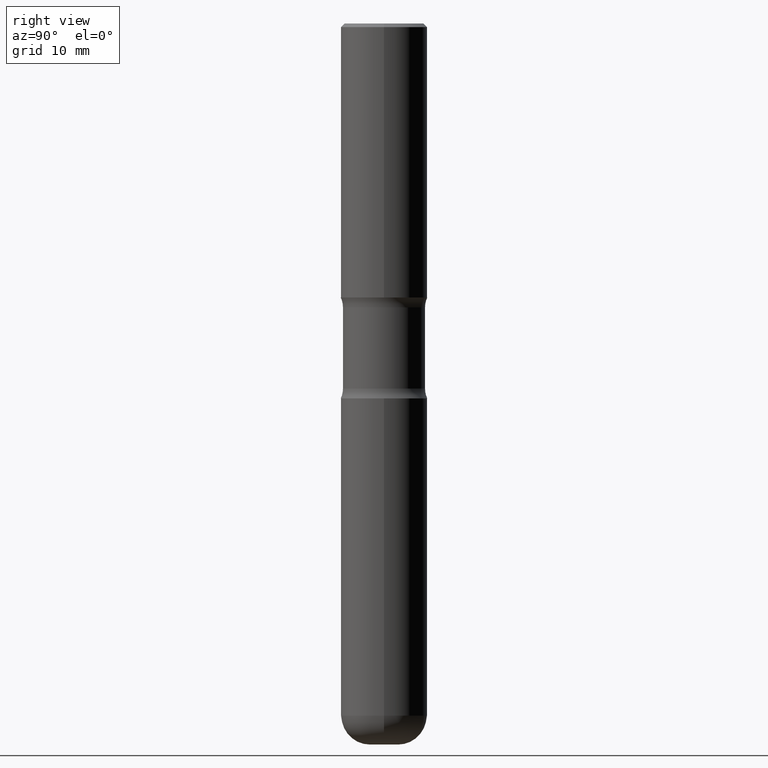
[diagram: clean part render]
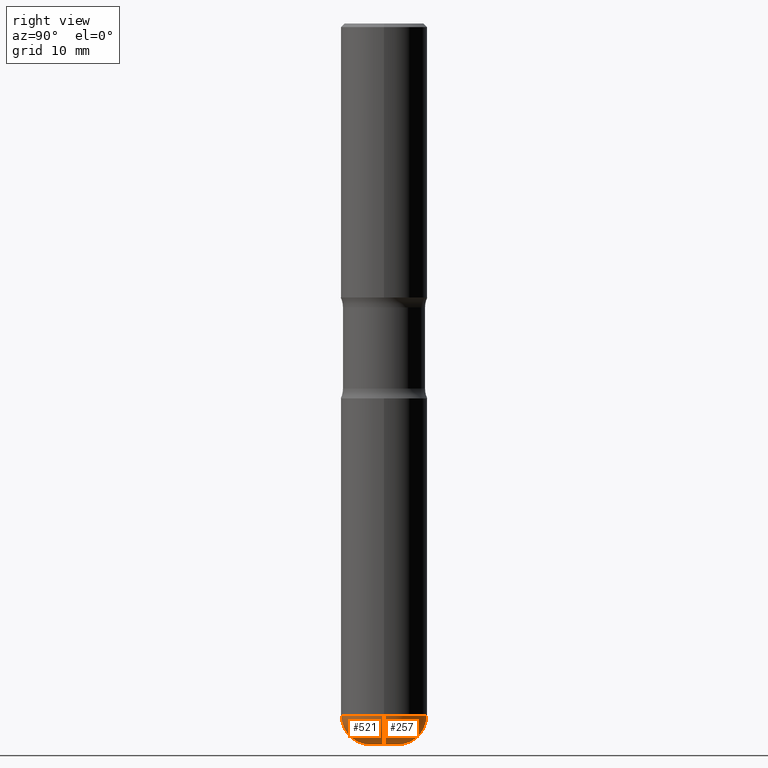
[diagram: same view with one multi-face feature highlighted, each face labeled with its STEP entity id]
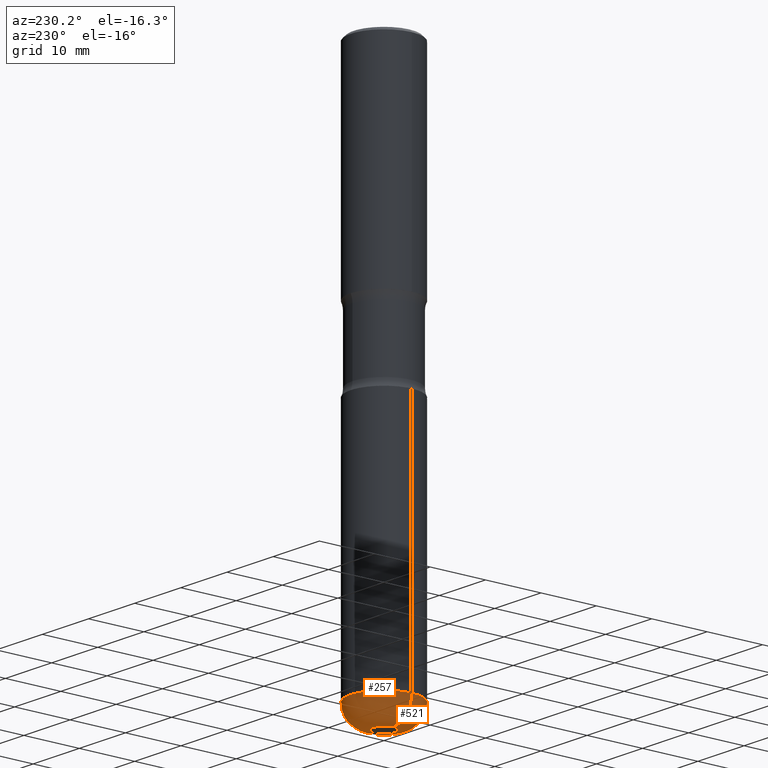
[diagram: same view with one multi-face feature highlighted, each face labeled with its STEP entity id]
A machine part, right view. The highlighted faces form ONE feature: a constant-radius fillet chain: 2 tangent blend faces with common blend radius 4.0132 mm. The faces share edges in the B-rep.
A second angle (auxiliary view) of the same feature is appended — it is thin or edge-on in the first view.
Their STEP definitions:
[1] entity #521 (Torus):
#36 = CARTESIAN_POINT ( 'NONE',  ( 9.627810689950883669E-29, -1.374596203102546341E-14, -3.937000000000000277 ) ) ;
#45 = AXIS2_PLACEMENT_3D ( 'NONE', #161, #383, #119 ) ;
#54 = CARTESIAN_POINT ( 'NONE',  ( -0.07820000000000038032, -1.263866356012384910E-14, -3.779000000000000359 ) ) ;
#65 = ORIENTED_EDGE ( 'NONE', *, *, #524, .T. ) ;
#69 = DIRECTION ( 'NONE',  ( -2.445468806185136597E-29, 3.491481338843145583E-15, 1.000000000000000000 ) ) ;
#78 = EDGE_CURVE ( 'NONE', #406, #420, #81, .T. ) ;
#81 = CIRCLE ( 'NONE', #251, 0.1579999999999998628 ) ;
#117 = CIRCLE ( 'NONE', #178, 0.07820000000000038032 ) ;
#119 = DIRECTION ( 'NONE',  ( 1.000000000000000000, -6.982962677686265922E-15, 4.883557194083112901E-29 ) ) ;
#131 = TOROIDAL_SURFACE ( 'NONE', #45, 0.07820000000000038032, 0.1579999999999998628 ) ;
#139 = DIRECTION ( 'NONE',  ( 7.105427357601001859E-15, 1.000000000000000000, -3.491481338843145583E-15 ) ) ;
#155 = EDGE_LOOP ( 'NONE', ( #219, #65, #189, #387 ) ) ;
#157 = DIRECTION ( 'NONE',  ( -6.982962677686266711E-15, -1.000000000000000000, 3.491481338843145583E-15 ) ) ;
#159 = CARTESIAN_POINT ( 'NONE',  ( 0.07820000000000038032, -1.374037566088331776E-14, -3.779000000000000359 ) ) ;
#161 = CARTESIAN_POINT ( 'NONE',  ( 9.241426618573632392E-29, -1.319430797948824935E-14, -3.779000000000000359 ) ) ;
#178 = AXIS2_PLACEMENT_3D ( 'NONE', #36, #241, #429 ) ;
#186 = AXIS2_PLACEMENT_3D ( 'NONE', #455, #69, #321 ) ;
#189 = ORIENTED_EDGE ( 'NONE', *, *, #466, .T. ) ;
#219 = ORIENTED_EDGE ( 'NONE', *, *, #78, .F. ) ;
#241 = DIRECTION ( 'NONE',  ( -2.445468806185136597E-29, 3.491481338843145583E-15, 1.000000000000000000 ) ) ;
#251 = AXIS2_PLACEMENT_3D ( 'NONE', #54, #139, #353 ) ;
#290 = FACE_OUTER_BOUND ( 'NONE', #155, .T. ) ;
#292 = AXIS2_PLACEMENT_3D ( 'NONE', #159, #157, #559 ) ;
#321 = DIRECTION ( 'NONE',  ( 1.000000000000000000, -6.982962677686263555E-15, 0.000000000000000000 ) ) ;
#340 = CARTESIAN_POINT ( 'NONE',  ( 0.2362000000000002709, -1.484368376395774588E-14, -3.779000000000000359 ) ) ;
#345 = CIRCLE ( 'NONE', #292, 0.1579999999999998628 ) ;
#353 = DIRECTION ( 'NONE',  ( -1.000000000000000000, 7.105427357600997914E-15, 0.000000000000000000 ) ) ;
#383 = DIRECTION ( 'NONE',  ( -2.445468806185136597E-29, 3.491481338843145583E-15, 1.000000000000000000 ) ) ;
#387 = ORIENTED_EDGE ( 'NONE', *, *, #393, .F. ) ;
#393 = EDGE_CURVE ( 'NONE', #420, #508, #476, .T. ) ;
#406 = VERTEX_POINT ( 'NONE', #556 ) ;
#420 = VERTEX_POINT ( 'NONE', #427 ) ;
#427 = CARTESIAN_POINT ( 'NONE',  ( -0.2362000000000002709, -1.151600603762289138E-14, -3.779000000000000359 ) ) ;
#429 = DIRECTION ( 'NONE',  ( 1.000000000000000000, -6.982962677686266711E-15, 0.000000000000000000 ) ) ;
#455 = CARTESIAN_POINT ( 'NONE',  ( 9.241426618573632392E-29, -1.319430797948824935E-14, -3.779000000000000359 ) ) ;
#466 = EDGE_CURVE ( 'NONE', #554, #508, #345, .T. ) ;
#476 = CIRCLE ( 'NONE', #186, 0.2362000000000003264 ) ;
#508 = VERTEX_POINT ( 'NONE', #340 ) ;
#521 = ADVANCED_FACE ( 'NONE', ( #290 ), #131, .T. ) ;
#522 = CARTESIAN_POINT ( 'NONE',  ( 0.07820000000000038032, -1.429202971242053182E-14, -3.937000000000000277 ) ) ;
#524 = EDGE_CURVE ( 'NONE', #406, #554, #117, .T. ) ;
#554 = VERTEX_POINT ( 'NONE', #522 ) ;
#556 = CARTESIAN_POINT ( 'NONE',  ( -0.07820000000000038032, -1.235316182464197885E-14, -3.937000000000000277 ) ) ;
#559 = DIRECTION ( 'NONE',  ( 1.000000000000000000, -6.982962677686265133E-15, 0.000000000000000000 ) ) ;
[2] entity #257 (Torus):
#54 = CARTESIAN_POINT ( 'NONE',  ( -0.07820000000000038032, -1.263866356012384910E-14, -3.779000000000000359 ) ) ;
#78 = EDGE_CURVE ( 'NONE', #406, #420, #81, .T. ) ;
#81 = CIRCLE ( 'NONE', #251, 0.1579999999999998628 ) ;
#88 = EDGE_CURVE ( 'NONE', #508, #420, #220, .T. ) ;
#112 = FACE_OUTER_BOUND ( 'NONE', #545, .T. ) ;
#118 = AXIS2_PLACEMENT_3D ( 'NONE', #252, #400, #207 ) ;
#124 = AXIS2_PLACEMENT_3D ( 'NONE', #224, #221, #216 ) ;
#139 = DIRECTION ( 'NONE',  ( 7.105427357601001859E-15, 1.000000000000000000, -3.491481338843145583E-15 ) ) ;
#145 = DIRECTION ( 'NONE',  ( 1.000000000000000000, -6.982962677686265922E-15, 4.883557194083112901E-29 ) ) ;
#157 = DIRECTION ( 'NONE',  ( -6.982962677686266711E-15, -1.000000000000000000, 3.491481338843145583E-15 ) ) ;
#159 = CARTESIAN_POINT ( 'NONE',  ( 0.07820000000000038032, -1.374037566088331776E-14, -3.779000000000000359 ) ) ;
#207 = DIRECTION ( 'NONE',  ( 1.000000000000000000, -6.982962677686263555E-15, 0.000000000000000000 ) ) ;
#216 = DIRECTION ( 'NONE',  ( 1.000000000000000000, -6.982962677686266711E-15, 0.000000000000000000 ) ) ;
#218 = ORIENTED_EDGE ( 'NONE', *, *, #78, .T. ) ;
#220 = CIRCLE ( 'NONE', #118, 0.2362000000000003264 ) ;
#221 = DIRECTION ( 'NONE',  ( -2.445468806185136597E-29, 3.491481338843145583E-15, 1.000000000000000000 ) ) ;
#224 = CARTESIAN_POINT ( 'NONE',  ( 9.627810689950883669E-29, -1.374596203102546341E-14, -3.937000000000000277 ) ) ;
#226 = CARTESIAN_POINT ( 'NONE',  ( 9.241426618573632392E-29, -1.319430797948824935E-14, -3.779000000000000359 ) ) ;
#251 = AXIS2_PLACEMENT_3D ( 'NONE', #54, #139, #353 ) ;
#252 = CARTESIAN_POINT ( 'NONE',  ( 9.241426618573632392E-29, -1.319430797948824935E-14, -3.779000000000000359 ) ) ;
#257 = ADVANCED_FACE ( 'NONE', ( #112 ), #335, .T. ) ;
#274 = ORIENTED_EDGE ( 'NONE', *, *, #298, .T. ) ;
#292 = AXIS2_PLACEMENT_3D ( 'NONE', #159, #157, #559 ) ;
#298 = EDGE_CURVE ( 'NONE', #554, #406, #365, .T. ) ;
#317 = DIRECTION ( 'NONE',  ( -2.445468806185136597E-29, 3.491481338843145583E-15, 1.000000000000000000 ) ) ;
#335 = TOROIDAL_SURFACE ( 'NONE', #486, 0.07820000000000038032, 0.1579999999999998628 ) ;
#340 = CARTESIAN_POINT ( 'NONE',  ( 0.2362000000000002709, -1.484368376395774588E-14, -3.779000000000000359 ) ) ;
#345 = CIRCLE ( 'NONE', #292, 0.1579999999999998628 ) ;
#353 = DIRECTION ( 'NONE',  ( -1.000000000000000000, 7.105427357600997914E-15, 0.000000000000000000 ) ) ;
#365 = CIRCLE ( 'NONE', #124, 0.07820000000000038032 ) ;
#400 = DIRECTION ( 'NONE',  ( -2.445468806185136597E-29, 3.491481338843145583E-15, 1.000000000000000000 ) ) ;
#406 = VERTEX_POINT ( 'NONE', #556 ) ;
#420 = VERTEX_POINT ( 'NONE', #427 ) ;
#427 = CARTESIAN_POINT ( 'NONE',  ( -0.2362000000000002709, -1.151600603762289138E-14, -3.779000000000000359 ) ) ;
#452 = ORIENTED_EDGE ( 'NONE', *, *, #88, .F. ) ;
#466 = EDGE_CURVE ( 'NONE', #554, #508, #345, .T. ) ;
#486 = AXIS2_PLACEMENT_3D ( 'NONE', #226, #317, #145 ) ;
#503 = ORIENTED_EDGE ( 'NONE', *, *, #466, .F. ) ;
#508 = VERTEX_POINT ( 'NONE', #340 ) ;
#522 = CARTESIAN_POINT ( 'NONE',  ( 0.07820000000000038032, -1.429202971242053182E-14, -3.937000000000000277 ) ) ;
#545 = EDGE_LOOP ( 'NONE', ( #274, #218, #452, #503 ) ) ;
#554 = VERTEX_POINT ( 'NONE', #522 ) ;
#556 = CARTESIAN_POINT ( 'NONE',  ( -0.07820000000000038032, -1.235316182464197885E-14, -3.937000000000000277 ) ) ;
#559 = DIRECTION ( 'NONE',  ( 1.000000000000000000, -6.982962677686265133E-15, 0.000000000000000000 ) ) ;